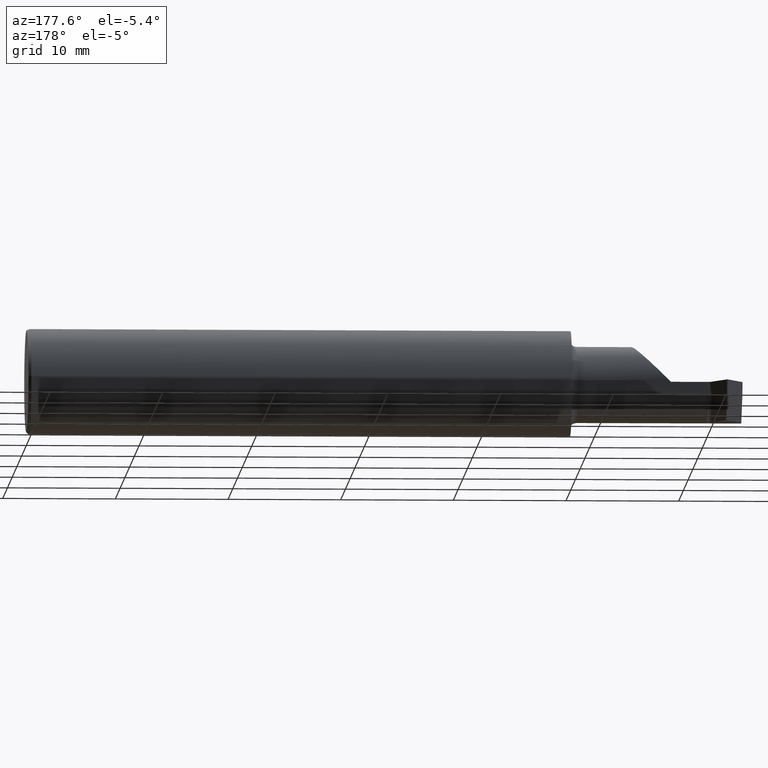
[diagram: clean part render]
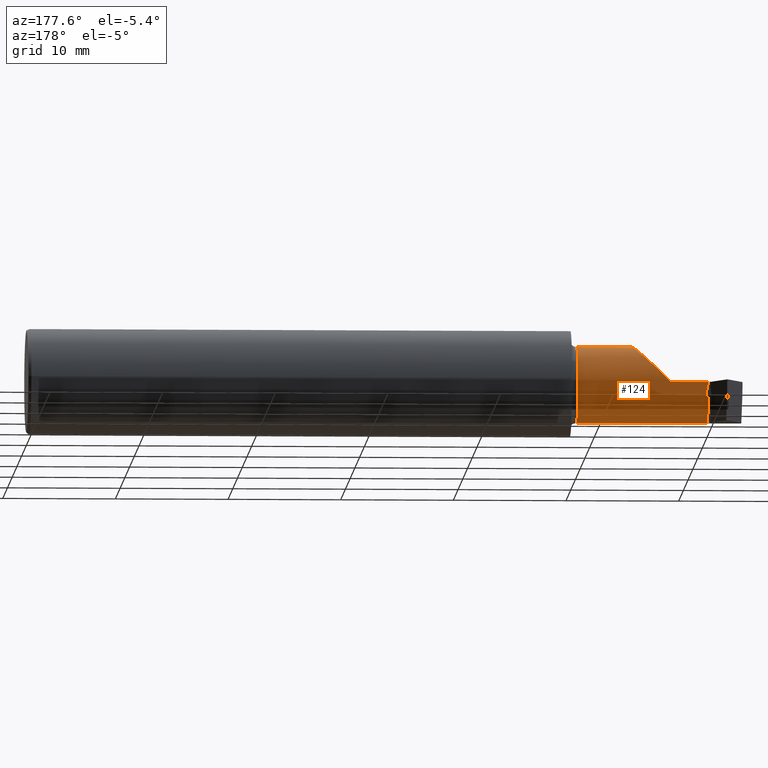
[diagram: same view with one face highlighted and labeled with its STEP entity id]
A machine part, auxiliary view. The second image highlights one B-rep face of the part: STEP entity #124.
In plain terms, the highlighted cylindrical surface (partial cylindrical patch) has radius 3.3782 mm, axis along (-1, 0, -0).
Its self-contained STEP definition (entity closure, byte-faithful):
#7 = DIRECTION ( 'NONE',  ( 1.000000000000000000, -9.108622265535208572E-17, 0.000000000000000000 ) ) ;
#9 = ORIENTED_EDGE ( 'NONE', *, *, #299, .T. ) ;
#16 = ORIENTED_EDGE ( 'NONE', *, *, #515, .F. ) ;
#17 = CARTESIAN_POINT ( 'NONE',  ( -1.925000000000000044, -0.05835000000000008930, 0.000000000000000000 ) ) ;
#26 = CARTESIAN_POINT ( 'NONE',  ( -2.192691453216396358, -0.1783697086546690014, 0.05730854678360306625 ) ) ;
#30 = CARTESIAN_POINT ( 'NONE',  ( -2.250000000000000000, 0.07465000000000011904, 0.000000000000000000 ) ) ;
#35 = EDGE_CURVE ( 'NONE', #169, #126, #444, .T. ) ;
#43 = VECTOR ( 'NONE', #7, 39.37007874015748143 ) ;
#46 = VERTEX_POINT ( 'NONE', #859 ) ;
#59 = CARTESIAN_POINT ( 'NONE',  ( -2.500000000000000000, -0.1783697086546693900, -0.05730854678360196297 ) ) ;
#76 = EDGE_CURVE ( 'NONE', #693, #583, #193, .T. ) ;
#93 = CARTESIAN_POINT ( 'NONE',  ( -2.030319072763994814, -0.1008380660117472460, 0.2196809272360031040 ) ) ;
#124 = ADVANCED_FACE ( 'NONE', ( #804 ), #347, .T. ) ;
#126 = VERTEX_POINT ( 'NONE', #270 ) ;
#129 = CARTESIAN_POINT ( 'NONE',  ( -2.370501519666968981, 0.06407714550917330276, -0.05196724008907774306 ) ) ;
#133 = DIRECTION ( 'NONE',  ( -1.000000000000000000, 9.108622265535208572E-17, -0.000000000000000000 ) ) ;
#160 = CIRCLE ( 'NONE', #277, 0.1330000000000000071 ) ;
#169 = VERTEX_POINT ( 'NONE', #129 ) ;
#193 = LINE ( 'NONE', #537, #43 ) ;
#198 = CARTESIAN_POINT ( 'NONE',  ( -2.381074374157795326, 0.07464999999999998026, 0.000000000000000000 ) ) ;
#222 = DIRECTION ( 'NONE',  ( 0.000000000000000000, -1.000000000000000000, 0.000000000000000000 ) ) ;
#228 = AXIS2_PLACEMENT_3D ( 'NONE', #17, #762, #287 ) ;
#237 = DIRECTION ( 'NONE',  ( 1.000000000000000000, -9.108622265535208572E-17, 0.000000000000000000 ) ) ;
#239 = CIRCLE ( 'NONE', #228, 0.1330000000000003124 ) ;
#242 = CARTESIAN_POINT ( 'NONE',  ( -2.500000000000001332, 0.06407714550917290031, -0.05196724008907763898 ) ) ;
#244 = CARTESIAN_POINT ( 'NONE',  ( -2.500000000000000000, -0.05835000000000015175, -0.1330000000000000349 ) ) ;
#248 = EDGE_CURVE ( 'NONE', #126, #290, #625, .T. ) ;
#253 = CARTESIAN_POINT ( 'NONE',  ( -2.500000000000000000, -0.05835000000000006154, 0.000000000000000000 ) ) ;
#270 = CARTESIAN_POINT ( 'NONE',  ( -2.381074374157795326, 0.06407714550917456564, -0.05196724008907338543 ) ) ;
#277 = AXIS2_PLACEMENT_3D ( 'NONE', #253, #306, #780 ) ;
#278 = VECTOR ( 'NONE', #647, 39.37007874015748143 ) ;
#287 = DIRECTION ( 'NONE',  ( 0.000000000000000000, -1.000000000000000000, 0.000000000000000000 ) ) ;
#290 = VERTEX_POINT ( 'NONE', #488 ) ;
#294 = ORIENTED_EDGE ( 'NONE', *, *, #704, .F. ) ;
#299 = EDGE_CURVE ( 'NONE', #487, #583, #239, .T. ) ;
#304 = ORIENTED_EDGE ( 'NONE', *, *, #791, .T. ) ;
#306 = DIRECTION ( 'NONE',  ( 1.000000000000000000, 1.553500558300393113E-17, -0.000000000000000000 ) ) ;
#322 = ORIENTED_EDGE ( 'NONE', *, *, #248, .F. ) ;
#347 = CYLINDRICAL_SURFACE ( 'NONE', #771, 0.1330000000000001459 ) ;
#354 =( BOUNDED_CURVE ( )  B_SPLINE_CURVE ( 3, ( #30, #634, #93, #26 ),
 .UNSPECIFIED., .F., .F. ) 
 B_SPLINE_CURVE_WITH_KNOTS ( ( 4, 4 ),
 ( 1.570796326794896558, 4.266908708460873001 ),
 .UNSPECIFIED. ) 
 CURVE ( )  GEOMETRIC_REPRESENTATION_ITEM ( )  RATIONAL_B_SPLINE_CURVE ( ( 1.000000000000000000, 0.4806019281062902104, 0.4806019281062902104, 1.000000000000000000 ) ) 
 REPRESENTATION_ITEM ( '' )  );
#368 = ORIENTED_EDGE ( 'NONE', *, *, #35, .F. ) ;
#370 = LINE ( 'NONE', #568, #278 ) ;
#395 = CARTESIAN_POINT ( 'NONE',  ( -2.377429102214748902, 0.07465000000000014679, -0.01791708402103008718 ) ) ;
#404 = CARTESIAN_POINT ( 'NONE',  ( -2.370501519666968981, 0.06407714550917330276, -0.05196724008907774306 ) ) ;
#444 = LINE ( 'NONE', #242, #593 ) ;
#448 = DIRECTION ( 'NONE',  ( -1.000000000000000000, 9.108622265535208572E-17, -0.000000000000000000 ) ) ;
#451 = VECTOR ( 'NONE', #448, 39.37007874015748143 ) ;
#468 = ORIENTED_EDGE ( 'NONE', *, *, #476, .T. ) ;
#476 = EDGE_CURVE ( 'NONE', #46, #652, #354, .T. ) ;
#487 = VERTEX_POINT ( 'NONE', #623 ) ;
#488 = CARTESIAN_POINT ( 'NONE',  ( -2.381074374157795326, -0.05835000000000015175, -0.1330000000000000349 ) ) ;
#510 = EDGE_CURVE ( 'NONE', #487, #652, #768, .T. ) ;
#515 = EDGE_CURVE ( 'NONE', #290, #764, #370, .T. ) ;
#537 = CARTESIAN_POINT ( 'NONE',  ( -2.153037187078897574, -0.1783697086546689459, -0.05730854678360326054 ) ) ;
#544 = EDGE_LOOP ( 'NONE', ( #294, #787, #468, #566, #9, #595, #304, #16, #322, #368 ) ) ;
#547 = CARTESIAN_POINT ( 'NONE',  ( -2.153037187078897574, -0.1783697086546689459, 0.05730854678360326054 ) ) ;
#549 = EDGE_CURVE ( 'NONE', #736, #46, #706, .T. ) ;
#555 = DIRECTION ( 'NONE',  ( -1.000000000000000000, 9.108622265535208572E-17, -0.000000000000000000 ) ) ;
#566 = ORIENTED_EDGE ( 'NONE', *, *, #510, .F. ) ;
#568 = CARTESIAN_POINT ( 'NONE',  ( -2.381074374157795326, -0.05835000000000015175, -0.1330000000000000349 ) ) ;
#583 = VERTEX_POINT ( 'NONE', #789 ) ;
#593 = VECTOR ( 'NONE', #721, 39.37007874015748143 ) ;
#595 = ORIENTED_EDGE ( 'NONE', *, *, #76, .F. ) ;
#610 = AXIS2_PLACEMENT_3D ( 'NONE', #773, #555, #222 ) ;
#623 = CARTESIAN_POINT ( 'NONE',  ( -1.925000000000000044, -0.1783697086546690846, 0.05730854678360332299 ) ) ;
#625 = CIRCLE ( 'NONE', #610, 0.1330000000000000349 ) ;
#634 = CARTESIAN_POINT ( 'NONE',  ( -2.070066830337790709, 0.07465000000000003577, 0.1799331696622072374 ) ) ;
#647 = DIRECTION ( 'NONE',  ( -1.000000000000000000, -1.553500558300393421E-17, -0.000000000000000000 ) ) ;
#652 = VERTEX_POINT ( 'NONE', #742 ) ;
#663 = CARTESIAN_POINT ( 'NONE',  ( -2.373857010182697014, 0.07107790796794771770, -0.03547447728800449951 ) ) ;
#669 = DIRECTION ( 'NONE',  ( 0.000000000000000000, -1.000000000000000000, 0.000000000000000000 ) ) ;
#693 = VERTEX_POINT ( 'NONE', #59 ) ;
#704 = EDGE_CURVE ( 'NONE', #736, #169, #734, .T. ) ;
#706 = LINE ( 'NONE', #782, #796 ) ;
#721 = DIRECTION ( 'NONE',  ( -1.000000000000000000, 9.108622265535208572E-17, -0.000000000000000000 ) ) ;
#730 = CARTESIAN_POINT ( 'NONE',  ( -2.500000000000000000, -0.05835000000000004072, 0.000000000000000000 ) ) ;
#734 =( BOUNDED_CURVE ( )  B_SPLINE_CURVE ( 3, ( #738, #395, #663, #404 ),
 .UNSPECIFIED., .F., .F. ) 
 B_SPLINE_CURVE_WITH_KNOTS ( ( 4, 4 ),
 ( 1.570796326794896780, 1.972222054753626219 ),
 .UNSPECIFIED. ) 
 CURVE ( )  GEOMETRIC_REPRESENTATION_ITEM ( )  RATIONAL_B_SPLINE_CURVE ( ( 1.000000000000000000, 0.9866164697472173950, 0.9866164697472173950, 1.000000000000000000 ) ) 
 REPRESENTATION_ITEM ( '' )  );
#736 = VERTEX_POINT ( 'NONE', #198 ) ;
#738 = CARTESIAN_POINT ( 'NONE',  ( -2.381074374157795326, 0.07464999999999998026, 0.000000000000000000 ) ) ;
#742 = CARTESIAN_POINT ( 'NONE',  ( -2.192691453216396358, -0.1783697086546690014, 0.05730854678360306625 ) ) ;
#762 = DIRECTION ( 'NONE',  ( -1.000000000000000000, 9.108622265535208572E-17, -0.000000000000000000 ) ) ;
#764 = VERTEX_POINT ( 'NONE', #244 ) ;
#768 = LINE ( 'NONE', #547, #451 ) ;
#771 = AXIS2_PLACEMENT_3D ( 'NONE', #730, #133, #669 ) ;
#773 = CARTESIAN_POINT ( 'NONE',  ( -2.381074374157795326, -0.05835000000000004766, 0.000000000000000000 ) ) ;
#780 = DIRECTION ( 'NONE',  ( 0.000000000000000000, -1.000000000000000000, 0.000000000000000000 ) ) ;
#782 = CARTESIAN_POINT ( 'NONE',  ( -2.500000000000000000, 0.07465000000000011904, 0.000000000000000000 ) ) ;
#787 = ORIENTED_EDGE ( 'NONE', *, *, #549, .T. ) ;
#789 = CARTESIAN_POINT ( 'NONE',  ( -1.925000000000000044, -0.1783697086546690569, -0.05730854678360337157 ) ) ;
#791 = EDGE_CURVE ( 'NONE', #693, #764, #160, .T. ) ;
#796 = VECTOR ( 'NONE', #237, 39.37007874015748143 ) ;
#804 = FACE_OUTER_BOUND ( 'NONE', #544, .T. ) ;
#859 = CARTESIAN_POINT ( 'NONE',  ( -2.250000000000000000, 0.07465000000000011904, 0.000000000000000000 ) ) ;